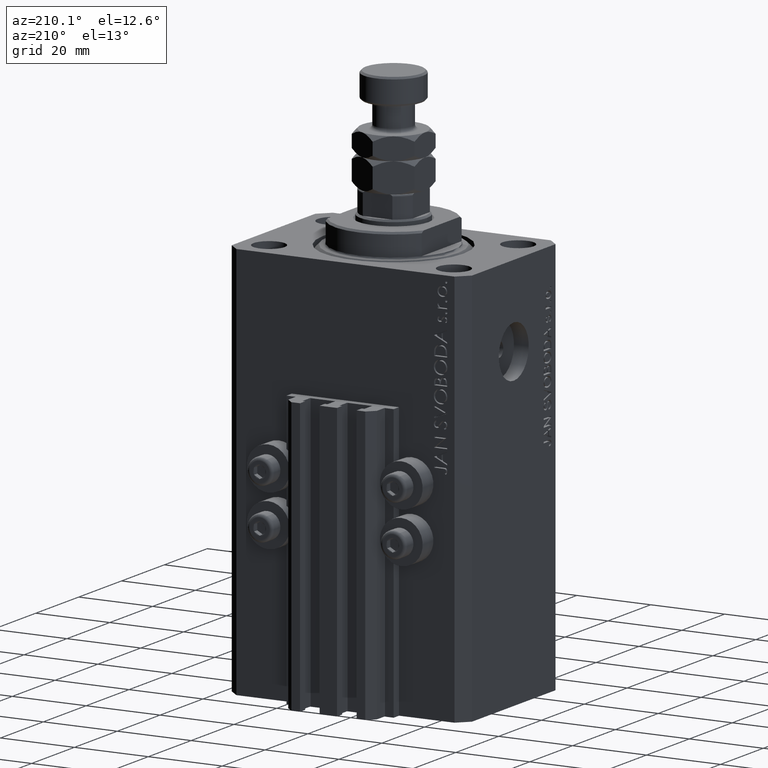
[diagram: clean part render]
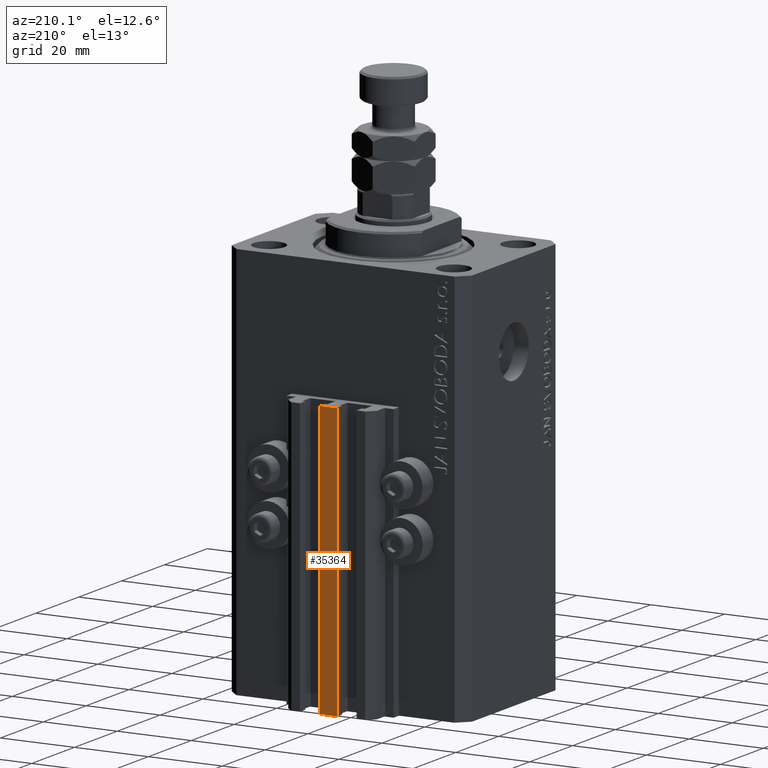
[diagram: same view with one face highlighted and labeled with its STEP entity id]
A machine part, auxiliary view. The second image highlights one B-rep face of the part: STEP entity #35364.
In plain terms, the highlighted planar face has unit normal (0, -1, 0).
Its self-contained STEP definition (entity closure, byte-faithful):
#3368 = CARTESIAN_POINT ( 'NONE',  ( -2.350000000000003197, 30.49999999999949907, -33.00000000000000000 ) ) ;
#5221 = CARTESIAN_POINT ( 'NONE',  ( -2.350000000000003197, 30.49999999999949907, -33.00000000000000000 ) ) ;
#5627 = DIRECTION ( 'NONE',  ( 0.000000000000000000, 0.000000000000000000, 1.000000000000000000 ) ) ;
#6540 = VERTEX_POINT ( 'NONE', #26124 ) ;
#6700 = VECTOR ( 'NONE', #32935, 1000.000000000000000 ) ;
#8626 = EDGE_CURVE ( 'NONE', #18881, #29712, #21549, .T. ) ;
#8775 = DIRECTION ( 'NONE',  ( 0.000000000000000000, -1.000000000000000000, 0.000000000000000000 ) ) ;
#11035 = ORIENTED_EDGE ( 'NONE', *, *, #47862, .T. ) ;
#13047 = LINE ( 'NONE', #46965, #19417 ) ;
#14437 = CARTESIAN_POINT ( 'NONE',  ( 2.349999999999999645, 30.49999999999949907, -107.0000000000000000 ) ) ;
#16448 = CARTESIAN_POINT ( 'NONE',  ( -2.350000000000003197, 30.49999999999949907, -107.0000000000000000 ) ) ;
#16778 = VERTEX_POINT ( 'NONE', #3368 ) ;
#17839 = CARTESIAN_POINT ( 'NONE',  ( -2.350000000000003197, 30.49999999999949907, -107.0000000000000000 ) ) ;
#18881 = VERTEX_POINT ( 'NONE', #23405 ) ;
#19417 = VECTOR ( 'NONE', #5627, 1000.000000000000000 ) ;
#19430 = DIRECTION ( 'NONE',  ( 0.000000000000000000, -0.000000000000000000, -1.000000000000000000 ) ) ;
#21549 = LINE ( 'NONE', #17839, #6700 ) ;
#23405 = CARTESIAN_POINT ( 'NONE',  ( -2.350000000000003197, 30.49999999999949907, -107.0000000000000000 ) ) ;
#23456 = ORIENTED_EDGE ( 'NONE', *, *, #32881, .F. ) ;
#23962 = AXIS2_PLACEMENT_3D ( 'NONE', #16448, #8775, #19430 ) ;
#25325 = LINE ( 'NONE', #14437, #39122 ) ;
#25677 = VECTOR ( 'NONE', #46801, 1000.000000000000000 ) ;
#26124 = CARTESIAN_POINT ( 'NONE',  ( 2.349999999999999645, 30.49999999999949907, -33.00000000000000000 ) ) ;
#27735 = LINE ( 'NONE', #5221, #25677 ) ;
#29712 = VERTEX_POINT ( 'NONE', #48805 ) ;
#32881 = EDGE_CURVE ( 'NONE', #29712, #6540, #25325, .T. ) ;
#32935 = DIRECTION ( 'NONE',  ( 1.000000000000000000, 0.000000000000000000, 0.000000000000000000 ) ) ;
#35364 = ADVANCED_FACE ( 'NONE', ( #35497 ), #46650, .F. ) ;
#35497 = FACE_OUTER_BOUND ( 'NONE', #43997, .T. ) ;
#38843 = EDGE_CURVE ( 'NONE', #16778, #6540, #27735, .T. ) ;
#39122 = VECTOR ( 'NONE', #40921, 1000.000000000000000 ) ;
#40921 = DIRECTION ( 'NONE',  ( 0.000000000000000000, 0.000000000000000000, 1.000000000000000000 ) ) ;
#42023 = ORIENTED_EDGE ( 'NONE', *, *, #8626, .F. ) ;
#43997 = EDGE_LOOP ( 'NONE', ( #46517, #23456, #42023, #11035 ) ) ;
#46517 = ORIENTED_EDGE ( 'NONE', *, *, #38843, .T. ) ;
#46650 = PLANE ( 'NONE',  #23962 ) ;
#46801 = DIRECTION ( 'NONE',  ( 1.000000000000000000, 0.000000000000000000, 0.000000000000000000 ) ) ;
#46965 = CARTESIAN_POINT ( 'NONE',  ( -2.350000000000003197, 30.49999999999949907, -107.0000000000000000 ) ) ;
#47862 = EDGE_CURVE ( 'NONE', #18881, #16778, #13047, .T. ) ;
#48805 = CARTESIAN_POINT ( 'NONE',  ( 2.349999999999999645, 30.49999999999949907, -107.0000000000000000 ) ) ;